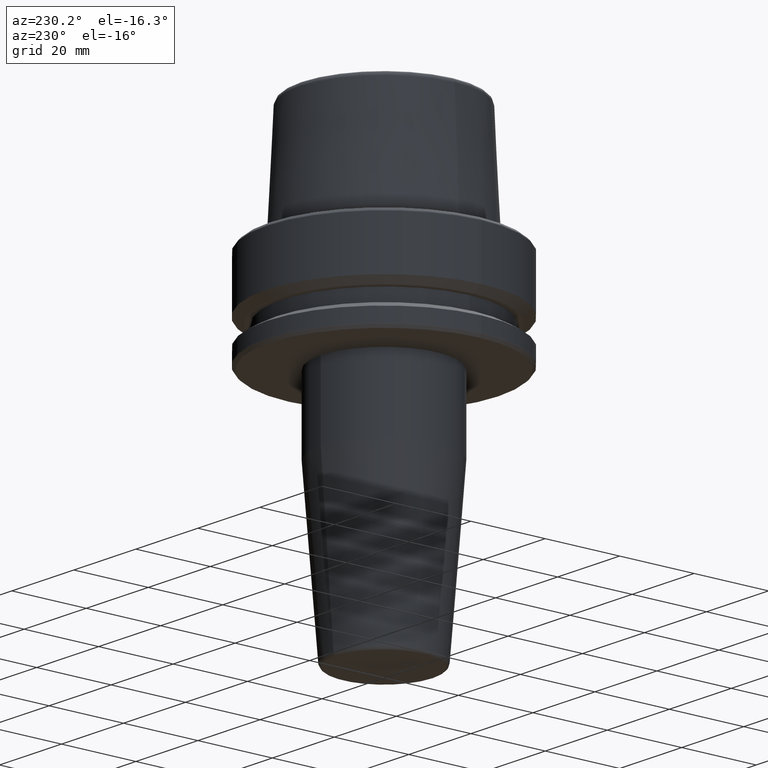
[diagram: clean part render]
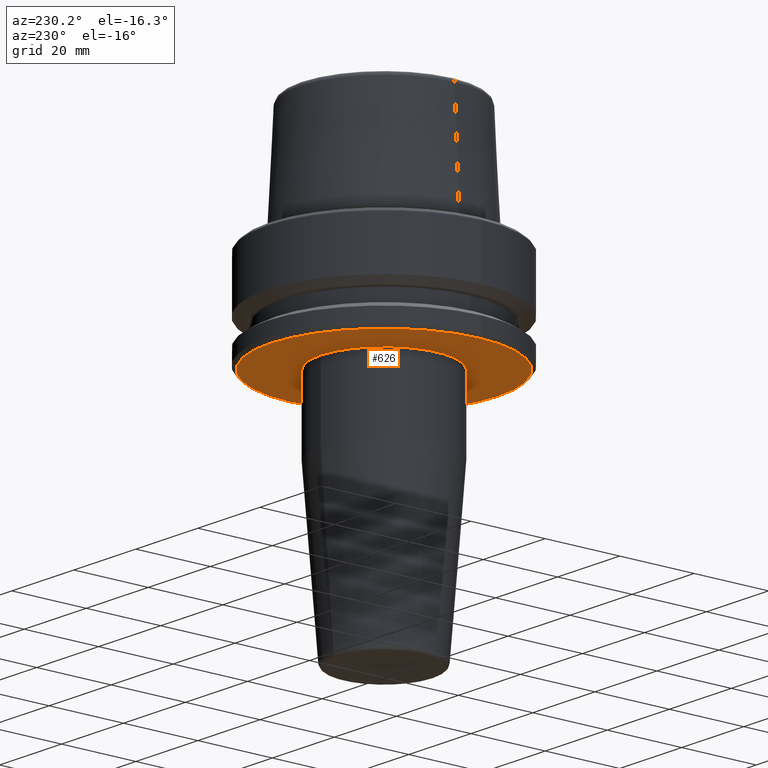
[diagram: same view with one face highlighted and labeled with its STEP entity id]
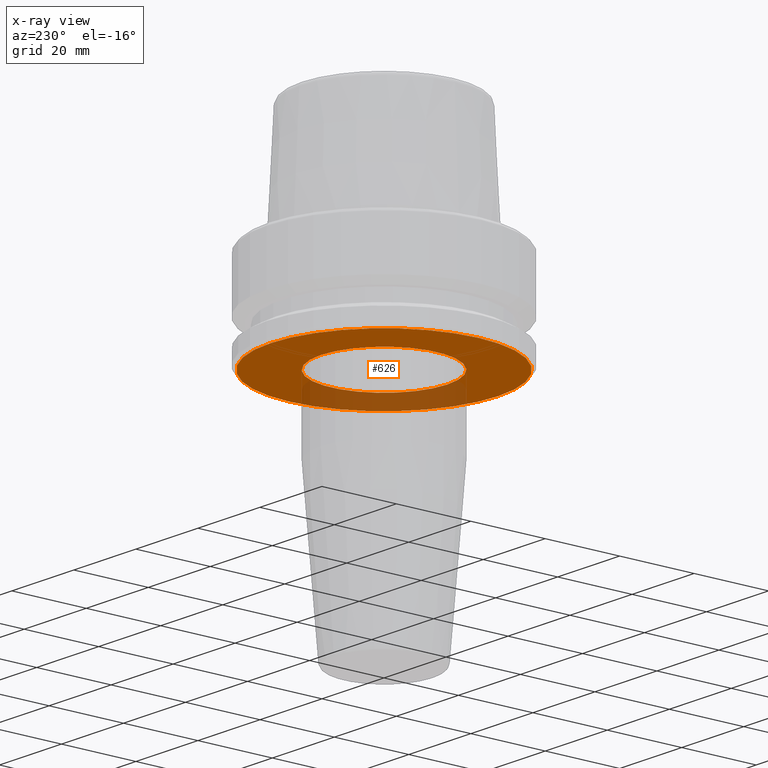
[diagram: x-ray of the same camera — body ghosted, the highlighted face saturated]
A machine part, auxiliary view. The second image highlights one B-rep face of the part: STEP entity #626.
The next image is the same camera in x-ray: the body ghosted, the highlighted face saturated — about 25% of this face is hidden behind the body in this view.
In plain terms, the highlighted planar face has unit normal (0, -0, 1).
Its self-contained STEP definition (entity closure, byte-faithful):
#3 = EDGE_CURVE ( 'NONE', #983, #181, #112, .T. ) ;
#33 = CARTESIAN_POINT ( 'NONE',  ( -30.53431457505076100, 3.756694181974138600E-015, -26.00000000000001100 ) ) ;
#45 = VERTEX_POINT ( 'NONE', #827 ) ;
#58 = DIRECTION ( 'NONE',  ( -0.0000000000000000000, -0.0000000000000000000, 1.000000000000000000 ) ) ;
#60 = ORIENTED_EDGE ( 'NONE', *, *, #651, .F. ) ;
#85 = AXIS2_PLACEMENT_3D ( 'NONE', #1201, #715, #318 ) ;
#112 = CIRCLE ( 'NONE', #85, 16.99999999999999300 ) ;
#167 = ORIENTED_EDGE ( 'NONE', *, *, #1193, .F. ) ;
#181 = VERTEX_POINT ( 'NONE', #1058 ) ;
#191 = DIRECTION ( 'NONE',  ( 0.0000000000000000000, 0.0000000000000000000, -1.000000000000000000 ) ) ;
#287 = EDGE_LOOP ( 'NONE', ( #60, #1034 ) ) ;
#318 = DIRECTION ( 'NONE',  ( 1.000000000000000000, 0.0000000000000000000, 0.0000000000000000000 ) ) ;
#373 = AXIS2_PLACEMENT_3D ( 'NONE', #646, #58, #746 ) ;
#376 = CARTESIAN_POINT ( 'NONE',  ( 2.081899558550499900E-015, -16.99999999999999300, -26.00000000000001100 ) ) ;
#481 = CARTESIAN_POINT ( 'NONE',  ( 0.0000000000000000000, 0.0000000000000000000, -26.00000000000001100 ) ) ;
#485 = PLANE ( 'NONE',  #779 ) ;
#577 = DIRECTION ( 'NONE',  ( 1.000000000000000000, 0.0000000000000000000, 0.0000000000000000000 ) ) ;
#604 = CIRCLE ( 'NONE', #839, 16.99999999999999300 ) ;
#626 = ADVANCED_FACE ( 'NONE', ( #1089, #1118 ), #485, .F. ) ;
#646 = CARTESIAN_POINT ( 'NONE',  ( 0.0000000000000000000, 0.0000000000000000000, -26.00000000000001100 ) ) ;
#651 = EDGE_CURVE ( 'NONE', #181, #983, #604, .T. ) ;
#715 = DIRECTION ( 'NONE',  ( 0.0000000000000000000, 0.0000000000000000000, -1.000000000000000000 ) ) ;
#717 = ORIENTED_EDGE ( 'NONE', *, *, #1094, .F. ) ;
#723 = VERTEX_POINT ( 'NONE', #33 ) ;
#746 = DIRECTION ( 'NONE',  ( 1.000000000000000000, 0.0000000000000000000, 0.0000000000000000000 ) ) ;
#779 = AXIS2_PLACEMENT_3D ( 'NONE', #1104, #1061, #1162 ) ;
#780 = DIRECTION ( 'NONE',  ( 1.000000000000000000, 0.0000000000000000000, 0.0000000000000000000 ) ) ;
#816 = CIRCLE ( 'NONE', #373, 30.53431457505076100 ) ;
#827 = CARTESIAN_POINT ( 'NONE',  ( 30.53431457505076100, 0.0000000000000000000, -26.00000000000001100 ) ) ;
#839 = AXIS2_PLACEMENT_3D ( 'NONE', #881, #191, #780 ) ;
#881 = CARTESIAN_POINT ( 'NONE',  ( 0.0000000000000000000, 0.0000000000000000000, -26.00000000000001100 ) ) ;
#925 = AXIS2_PLACEMENT_3D ( 'NONE', #481, #1151, #577 ) ;
#983 = VERTEX_POINT ( 'NONE', #376 ) ;
#1034 = ORIENTED_EDGE ( 'NONE', *, *, #3, .F. ) ;
#1058 = CARTESIAN_POINT ( 'NONE',  ( 0.0000000000000000000, 16.99999999999999300, -26.00000000000001100 ) ) ;
#1061 = DIRECTION ( 'NONE',  ( 0.0000000000000000000, -0.0000000000000000000, 1.000000000000000000 ) ) ;
#1065 = EDGE_LOOP ( 'NONE', ( #717, #167 ) ) ;
#1089 = FACE_OUTER_BOUND ( 'NONE', #1065, .T. ) ;
#1094 = EDGE_CURVE ( 'NONE', #45, #723, #1167, .T. ) ;
#1104 = CARTESIAN_POINT ( 'NONE',  ( 0.0000000000000000000, 30.53431457505076100, -26.00000000000000700 ) ) ;
#1118 = FACE_BOUND ( 'NONE', #287, .T. ) ;
#1151 = DIRECTION ( 'NONE',  ( -0.0000000000000000000, -0.0000000000000000000, 1.000000000000000000 ) ) ;
#1162 = DIRECTION ( 'NONE',  ( 1.000000000000000000, 0.0000000000000000000, 0.0000000000000000000 ) ) ;
#1167 = CIRCLE ( 'NONE', #925, 30.53431457505076100 ) ;
#1193 = EDGE_CURVE ( 'NONE', #723, #45, #816, .T. ) ;
#1201 = CARTESIAN_POINT ( 'NONE',  ( 0.0000000000000000000, 0.0000000000000000000, -26.00000000000001100 ) ) ;